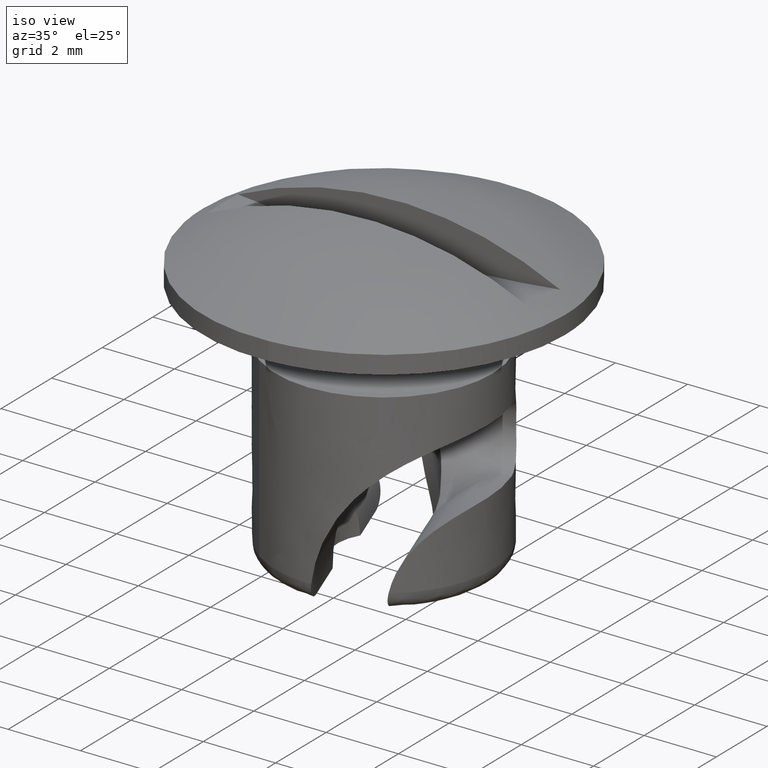
[diagram: clean part render]
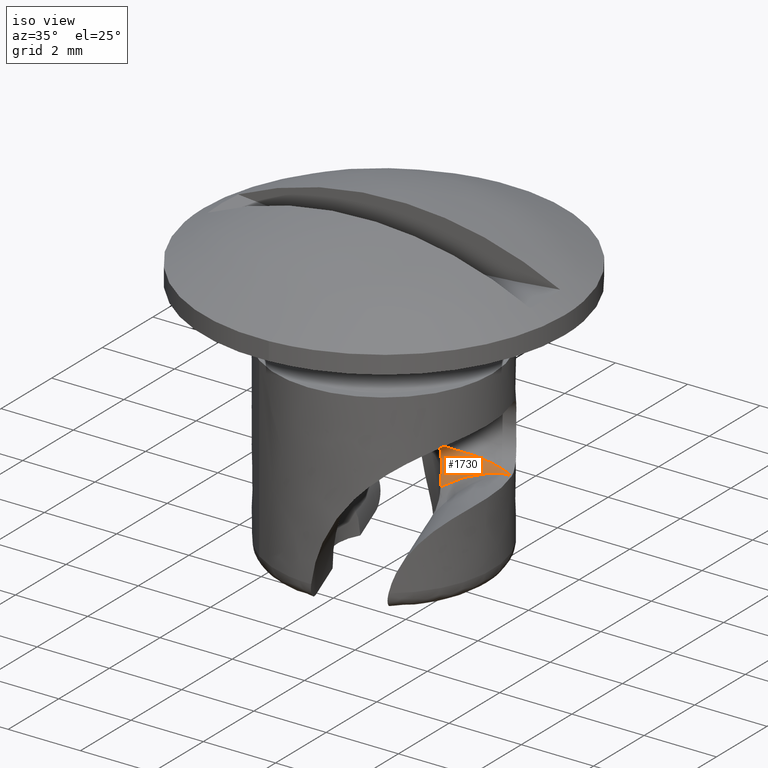
[diagram: same view with one face highlighted and labeled with its STEP entity id]
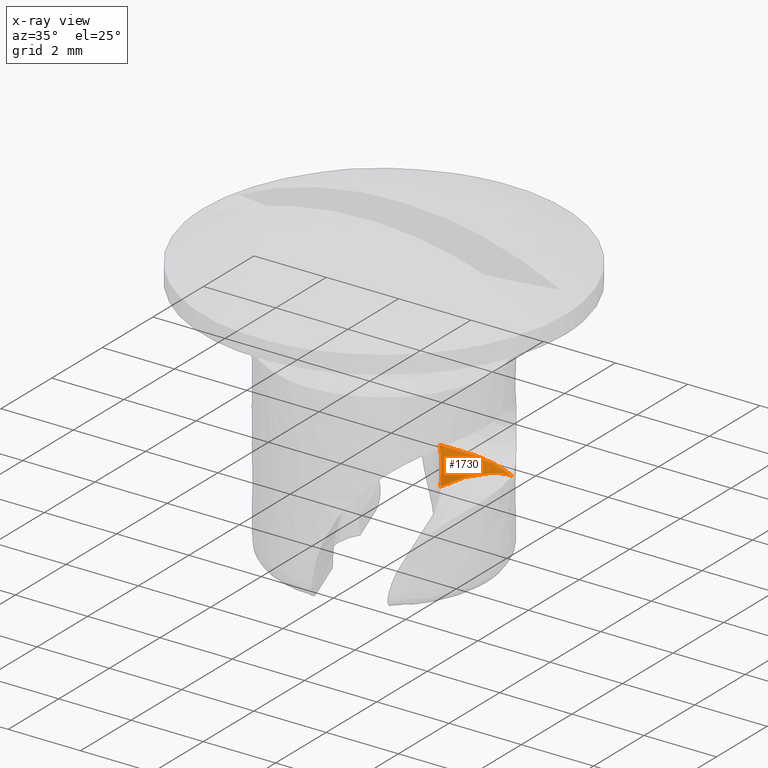
[diagram: x-ray of the same camera — body ghosted, the highlighted face saturated]
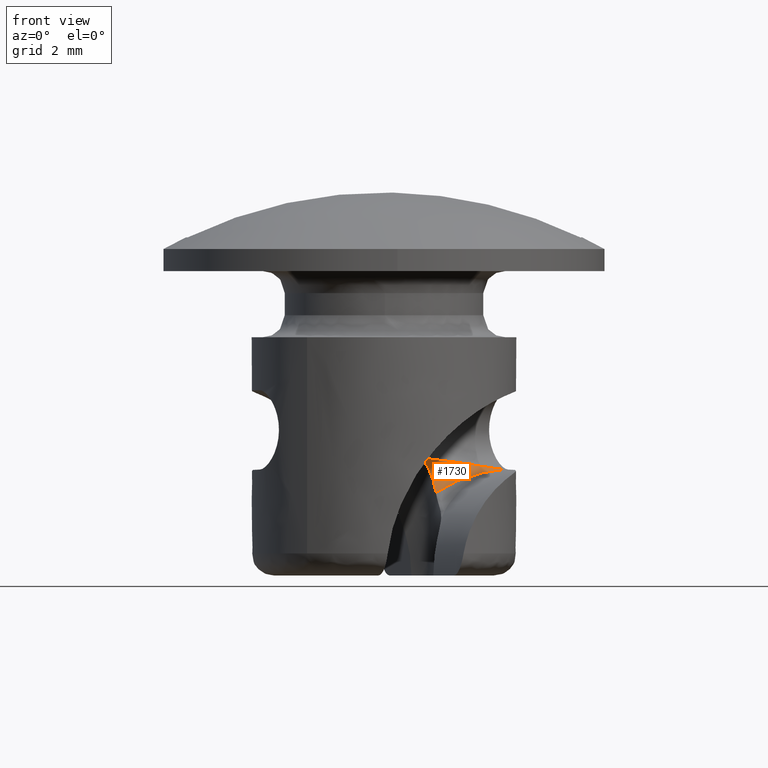
[diagram: same view with one face highlighted and labeled with its STEP entity id]
A machine part, iso view. The second image highlights one B-rep face of the part: STEP entity #1730.
The next image is the same camera in x-ray: the body ghosted, the highlighted face saturated — about 1% of this face is hidden behind the body in this view.
A second angle (front view) of the same face is appended — the face is thin or edge-on in the first view.
In plain terms, the highlighted face is a freeform B-spline surface patch.
Its self-contained STEP definition (entity closure, byte-faithful):
#1541=CARTESIAN_POINT('',(2.819077636768695,1.026061049781646,-4.500000000000000));
#1542=VERTEX_POINT('',#1541);
#1563=CARTESIAN_POINT('',(1.176015239365970,0.553224749701621,-5.024242325245750));
#1564=VERTEX_POINT('',#1563);
#1565=CARTESIAN_POINT('',(1.176015239365970,0.553224749701621,-5.024242325245750));
#1566=CARTESIAN_POINT('',(1.233647654575812,0.582225018347759,-4.985474702240012));
#1567=CARTESIAN_POINT('',(1.352210244149007,0.641884967292903,-4.905721151075755));
#1568=CARTESIAN_POINT('',(1.547078713043419,0.734112004436645,-4.802008236165012));
#1569=CARTESIAN_POINT('',(1.761792199094444,0.828534518010187,-4.707710509135886));
#1570=CARTESIAN_POINT('',(1.982710590404632,0.915078146502158,-4.633144461838898));
#1571=CARTESIAN_POINT('',(2.199734421845677,0.987032611027473,-4.576296891688249));
#1572=CARTESIAN_POINT('',(2.404187797268723,1.037800801841704,-4.536816749885258));
#1573=CARTESIAN_POINT('',(2.613107295540960,1.065475252937584,-4.513834308106317));
#1574=CARTESIAN_POINT('',(2.749646591098766,1.039347279842983,-4.504663440727514));
#1575=CARTESIAN_POINT('',(2.819077636768695,1.026061049781646,-4.500000000000000));
#1576=B_SPLINE_CURVE_WITH_KNOTS('',3,(#1565,#1566,#1567,#1568,#1569,#1570,#1571,#1572,#1573,#1574,#1575),.UNSPECIFIED.,.F.,.U.,(4,1,1,1,1,1,1,1,4),(0.0,0.122817746184123,0.252663192755562,0.389990015446671,0.535118409748377,0.658171618915249,0.773960359047332,0.885057495206172,1.000000000000000),.UNSPECIFIED.);
#1577=EDGE_CURVE('',#1564,#1542,#1576,.T.);
#1600=CARTESIAN_POINT('',(2.821736207328069,1.021228439045272,-4.503272534327961));
#1601=CARTESIAN_POINT('',(2.821519316243108,1.021960362181837,-4.501912983789081));
#1602=CARTESIAN_POINT('',(2.821001527751147,1.024280771620680,-4.499984011911098));
#1603=CARTESIAN_POINT('',(2.820406512321905,1.027180960036049,-4.499474012034329));
#1604=CARTESIAN_POINT('',(2.819588608661420,1.029572501931574,-4.497946363375283));
#1605=CARTESIAN_POINT('',(2.819236537250108,1.030803404078791,-4.497098041557043));
#1606=CARTESIAN_POINT('',(2.819235167452993,1.030808218132970,-4.497096120627790));
#1607=CARTESIAN_POINT('',(2.821070508992221,1.021164533892654,-4.503538132304211));
#1608=CARTESIAN_POINT('',(2.820835947899266,1.021943290875088,-4.502115474147386));
#1609=CARTESIAN_POINT('',(2.820275700158740,1.024373220055773,-4.500070083423023));
#1610=CARTESIAN_POINT('',(2.819642580722739,1.027413499376712,-4.499498775810242));
#1611=CARTESIAN_POINT('',(2.818787828361279,1.029947548012022,-4.497943029279989));
#1612=CARTESIAN_POINT('',(2.818418803579291,1.031249041003460,-4.497096364433590));
#1613=CARTESIAN_POINT('',(2.818417368748877,1.031254124648962,-4.497094450429064));
#1614=CARTESIAN_POINT('',(2.820405025493118,1.021100683890018,-4.503803686172327));
#1615=CARTESIAN_POINT('',(2.820152749949806,1.021926157736288,-4.502317713315100));
#1616=CARTESIAN_POINT('',(2.819550411383162,1.024466390849858,-4.500157540602181));
#1617=CARTESIAN_POINT('',(2.818878622919110,1.027645553259531,-4.499522647999249));
#1618=CARTESIAN_POINT('',(2.817987593370380,1.030322846335527,-4.497939460304985));
#1619=CARTESIAN_POINT('',(2.817601094593947,1.031694632049211,-4.497094770424051));
#1620=CARTESIAN_POINT('',(2.817599595064176,1.031699985406939,-4.497092865490909));
#1621=CARTESIAN_POINT('',(2.798269134433292,1.018976130279586,-4.512636486950698));
#1622=CARTESIAN_POINT('',(2.797438978783744,1.021364650428296,-4.509061378334963));
#1623=CARTESIAN_POINT('',(2.795395825605269,1.027507732243598,-4.502960388099381));
#1624=CARTESIAN_POINT('',(2.793435310166730,1.035403138517663,-4.500371335822512));
#1625=CARTESIAN_POINT('',(2.791230608903491,1.042833647568905,-4.497815992063145));
#1626=CARTESIAN_POINT('',(2.790252514492014,1.046599625264541,-4.497035370039018));
#1627=CARTESIAN_POINT('',(2.790248660099476,1.046614079967518,-4.497033624236365));
#1628=CARTESIAN_POINT('',(2.755968611511538,1.014171645310562,-4.529483909915514));
#1629=CARTESIAN_POINT('',(2.754092313856013,1.019314373317708,-4.521846722734492));
#1630=CARTESIAN_POINT('',(2.749569948507937,1.032291395485781,-4.508871340439330));
#1631=CARTESIAN_POINT('',(2.744936733062819,1.048190284602794,-4.501156118568392));
#1632=CARTESIAN_POINT('',(2.740307493389195,1.064597008853722,-4.496286039084551));
#1633=CARTESIAN_POINT('',(2.738019270857499,1.072786164422483,-4.495652856314121));
#1634=CARTESIAN_POINT('',(2.738010657081243,1.072817663845967,-4.495651231335462));
#1635=CARTESIAN_POINT('',(2.673423290672663,1.002197411498125,-4.562230420559798));
#1636=CARTESIAN_POINT('',(2.669797452152253,1.012048719555472,-4.546815491537537));
#1637=CARTESIAN_POINT('',(2.661104871988224,1.037532918489983,-4.521475670143876));
#1638=CARTESIAN_POINT('',(2.651434682110229,1.067613015967152,-4.503175993672000));
#1639=CARTESIAN_POINT('',(2.641493768702631,1.099145304203566,-4.491765795799748));
#1640=CARTESIAN_POINT('',(2.636579342565619,1.115525371313301,-4.489499084009325));
#1641=CARTESIAN_POINT('',(2.636560391724260,1.115588212619351,-4.489489918773478));
#1642=CARTESIAN_POINT('',(2.533410171860790,0.976023792364434,-4.616859078799386));
#1643=CARTESIAN_POINT('',(2.527460630111214,0.992702418921162,-4.588996299715907));
#1644=CARTESIAN_POINT('',(2.512345703666989,1.036126233629911,-4.542027217053232));
#1645=CARTESIAN_POINT('',(2.494747337763117,1.085067218670103,-4.503094000204092));
#1646=CARTESIAN_POINT('',(2.476012567248410,1.138297147817990,-4.475351970467049));
#1647=CARTESIAN_POINT('',(2.466234526340061,1.166839107057590,-4.467397998306542));
#1648=CARTESIAN_POINT('',(2.466196727336843,1.166949234251992,-4.467367003283956));
#1649=CARTESIAN_POINT('',(2.414447222315899,0.944658746414920,-4.659221757924579));
#1650=CARTESIAN_POINT('',(2.407102338018110,0.964779239061489,-4.621232412759293));
#1651=CARTESIAN_POINT('',(2.388263593574822,1.016719681029178,-4.553838706552672));
#1652=CARTESIAN_POINT('',(2.366291268541822,1.078610555287200,-4.498859966934186));
#1653=CARTESIAN_POINT('',(2.342273852238737,1.146593693637068,-4.457919276228129));
#1654=CARTESIAN_POINT('',(2.329609664923411,1.182705184861417,-4.443532791239259));
#1655=CARTESIAN_POINT('',(2.329560511842579,1.182845466177420,-4.443477124418235));
#1656=CARTESIAN_POINT('',(2.180227150158041,0.880046894022376,-4.739652060116825));
#1657=CARTESIAN_POINT('',(2.170645212477917,0.906405094664892,-4.683696291451455));
#1658=CARTESIAN_POINT('',(2.145591332469557,0.975377644328541,-4.582813103592482));
#1659=CARTESIAN_POINT('',(2.115585365456095,1.057768701630929,-4.496118917027775));
#1660=CARTESIAN_POINT('',(2.082036805132915,1.149936539298695,-4.425725790872275));
#1661=CARTESIAN_POINT('',(2.063769597825089,1.200153451526542,-4.398771240975081));
#1662=CARTESIAN_POINT('',(2.063698327580956,1.200349337482362,-4.398666068629546));
#1663=CARTESIAN_POINT('',(2.024692553392404,0.832048812609631,-4.789149711556409));
#1664=CARTESIAN_POINT('',(2.014166157600011,0.860982892357061,-4.722885832423031));
#1665=CARTESIAN_POINT('',(1.986559293226829,0.936860959177048,-4.601653644076823));
#1666=CARTESIAN_POINT('',(1.953375602404471,1.028123556404706,-4.495132575252044));
#1667=CARTESIAN_POINT('',(1.915953473182460,1.130990067598577,-4.405986048320969));
#1668=CARTESIAN_POINT('',(1.895432583175110,1.187397357311800,-4.370005244326697));
#1669=CARTESIAN_POINT('',(1.895352350976369,1.187617919677507,-4.369864586826899));
#1670=CARTESIAN_POINT('',(1.582400546311545,0.690096122238825,-4.922180516459346));
#1671=CARTESIAN_POINT('',(1.569711188770153,0.724957639445357,-4.829767028168275));
#1672=CARTESIAN_POINT('',(1.536354368533365,0.816804789269254,-4.656466311740024));
#1673=CARTESIAN_POINT('',(1.495847565264049,0.928442013546389,-4.498494769426033));
#1674=CARTESIAN_POINT('',(1.449439391070071,1.056502112988957,-4.359096220657168));
#1675=CARTESIAN_POINT('',(1.423551543780265,1.127998031241061,-4.298710267647336));
#1676=CARTESIAN_POINT('',(1.423449818022454,1.128278968563806,-4.298473037688122));
#1677=CARTESIAN_POINT('',(1.297277671908466,0.593819772061115,-4.999817803811919));
#1678=CARTESIAN_POINT('',(1.283860055047885,0.630586006112016,-4.893234982537911));
#1679=CARTESIAN_POINT('',(1.248531791169762,0.727615705645225,-4.691384762522179));
#1680=CARTESIAN_POINT('',(1.205541639843250,0.845964424760890,-4.504585526924242));
#1681=CARTESIAN_POINT('',(1.155924192390204,0.982751665844270,-4.336598640151399));
#1682=CARTESIAN_POINT('',(1.128043344696076,1.059676853753932,-4.262101932335263));
#1683=CARTESIAN_POINT('',(1.127933659587277,1.059979480376251,-4.261808685236147));
#1684=CARTESIAN_POINT('',(1.012581991233769,0.494840399495982,-5.071849606738534));
#1685=CARTESIAN_POINT('',(0.998581826197665,0.533273407931932,-4.952742701689714));
#1686=CARTESIAN_POINT('',(0.961600481322006,0.635025808502768,-4.725729230197819));
#1687=CARTESIAN_POINT('',(0.916405271094791,0.759520730995340,-4.513749707497120));
#1688=CARTESIAN_POINT('',(0.864136054824772,0.903574246925575,-4.320243902060973));
#1689=CARTESIAN_POINT('',(0.834677828595787,0.984804608878263,-4.232815625404608));
#1690=CARTESIAN_POINT('',(0.834561738228002,0.985124731237347,-4.232471131894848));
#1698=(BOUNDED_SURFACE()B_SPLINE_SURFACE(2,3,((#1600,#1607,#1614,#1621,#1628,#1635,#1642,#1649,#1656,#1663,#1670,#1677,#1684),(#1601,#1608,#1615,#1622,#1629,#1636,#1643,#1650,#1657,#1664,#1671,#1678,#1685),(#1602,#1609,#1616,#1623,#1630,#1637,#1644,#1651,#1658,#1665,#1672,#1679,#1686),(#1603,#1610,#1617,#1624,#1631,#1638,#1645,#1652,#1659,#1666,#1673,#1680,#1687),(#1604,#1611,#1618,#1625,#1632,#1639,#1646,#1653,#1660,#1667,#1674,#1681,#1688),(#1605,#1612,#1619,#1626,#1633,#1640,#1647,#1654,#1661,#1668,#1675,#1682,#1689),(#1606,#1613,#1620,#1627,#1634,#1641,#1648,#1655,#1662,#1669,#1676,#1683,#1690)),.UNSPECIFIED.,.F.,.F.,.U.)B_SPLINE_SURFACE_WITH_KNOTS((3,1,1,1,1,3),(4,2,1,1,1,2,2,4),(0.423891482977695,0.567918612233272,0.711945741488848,0.855972870744424,1.0,1.000576108517022),(0.0,0.002794399077532,0.093455040566633,0.184115682055734,0.365436965033936,0.728079530990340,1.453364662908433,2.797193476609722),.UNSPECIFIED.)GEOMETRIC_REPRESENTATION_ITEM()RATIONAL_B_SPLINE_SURFACE(((0.856541353287924,0.856676422945573,0.856811492603221,0.861328721526014,0.869467612290098,0.883502748888549,0.902857343599942,0.912852486849721,0.930267681444936,0.937324444976098,0.953516338452962,0.958780675186576,0.963246866374382),(0.850101954707311,0.850243087208724,0.850384219710138,0.855104212552571,0.863608432021723,0.878273560891550,0.898496921289567,0.908940714465515,0.927137621295773,0.934511140310886,0.951429835958703,0.956930471885620,0.961597136072820),(0.861594886965707,0.861725198603679,0.861855510241652,0.866213613388377,0.874065800217086,0.887606529283483,0.906279331029199,0.915922381225094,0.932724100965993,0.939532280023662,0.955153791157825,0.960232684186341,0.964541547474461),(0.897459548643726,0.897556092867286,0.897652637090846,0.900881433006874,0.906698897144561,0.916730842061346,0.930564995129214,0.937709259512663,0.950157180604759,0.955201168779638,0.966774706544584,0.970537515389697,0.973729830880866),(0.957695939741368,0.957735769999545,0.957775600257722,0.959107671408061,0.961507722804149,0.965646499225139,0.971353913589610,0.974301349328224,0.979436860212071,0.981517806578813,0.986292582118982,0.987844965495688,0.989161986292034),(1.000169216241035,1.000169056920002,1.000168897598969,1.000163569314368,1.000153969108784,1.000137414003100,1.000114584345642,1.000102794602687,1.000082252559152,1.000073928773685,1.000054829671524,1.000048620138017,1.000043352054832),(1.000338432482069,1.000338113840004,1.000337795197938,1.000327138628736,1.000307938217567,1.000274828006199,1.000229168691283,1.000205589205375,1.000164505118304,1.000147857547370,1.000109659343048,1.000097240276034,1.000086704109664)))REPRESENTATION_ITEM('')SURFACE());
#1699=CARTESIAN_POINT('',(0.845712621141468,0.987304493275519,-4.234273403431351));
#1700=VERTEX_POINT('',#1699);
#1701=CARTESIAN_POINT('',(1.176015239365970,0.553224749701621,-5.024242325245750));
#1702=CARTESIAN_POINT('',(1.170164170728802,0.565713689400622,-4.986119725295387));
#1703=CARTESIAN_POINT('',(1.156072377692670,0.594683666160350,-4.905581001906334));
#1704=CARTESIAN_POINT('',(1.128594471410467,0.645853124598103,-4.785884832154585));
#1705=CARTESIAN_POINT('',(1.092325283565762,0.705881209360352,-4.665714952111372));
#1706=CARTESIAN_POINT('',(1.047320094048110,0.771572939558827,-4.550222145330580));
#1707=CARTESIAN_POINT('',(0.992063586294932,0.841613080190192,-4.439576715485635));
#1708=CARTESIAN_POINT('',(0.926247020670068,0.914724968643971,-4.333157564266065));
#1709=CARTESIAN_POINT('',(0.872762655410516,0.962926356230896,-4.267486787462297));
#1710=CARTESIAN_POINT('',(0.845712621141468,0.987304493275519,-4.234273403431351));
#1711=B_SPLINE_CURVE_WITH_KNOTS('',3,(#1701,#1702,#1703,#1704,#1705,#1706,#1707,#1708,#1709,#1710),.UNSPECIFIED.,.F.,.U.,(4,1,1,1,1,1,1,4),(0.313649981401475,0.399450516679358,0.497112738831826,0.595014031668895,0.693716575850052,0.793768860200304,0.895697380498866,1.0),.UNSPECIFIED.);
#1712=EDGE_CURVE('',#1564,#1700,#1711,.T.);
#1713=ORIENTED_EDGE('',*,*,#1712,.F.);
#1714=ORIENTED_EDGE('',*,*,#1577,.T.);
#1715=CARTESIAN_POINT('',(0.845712621141468,0.987304493275519,-4.234273403431351));
#1716=CARTESIAN_POINT('',(0.977034305806228,1.019742838180287,-4.248342385765178));
#1717=CARTESIAN_POINT('',(1.221588542686740,1.080151002251234,-4.274542508981515));
#1718=CARTESIAN_POINT('',(1.569740274643567,1.147118667711286,-4.320588524003972));
#1719=CARTESIAN_POINT('',(1.878754289843595,1.185611639679857,-4.368322902290685));
#1720=CARTESIAN_POINT('',(2.156624753128541,1.194472563367219,-4.416084361140531));
#1721=CARTESIAN_POINT('',(2.405285216541678,1.171687988802683,-4.458170439689719));
#1722=CARTESIAN_POINT('',(2.627313002956700,1.120572824222597,-4.491775874476535));
#1723=CARTESIAN_POINT('',(2.757158247932409,1.056578206125261,-4.497344490399491));
#1724=CARTESIAN_POINT('',(2.819077636768695,1.026061049781646,-4.500000000000000));
#1725=B_SPLINE_CURVE_WITH_KNOTS('',3,(#1715,#1716,#1717,#1718,#1719,#1720,#1721,#1722,#1723,#1724),.UNSPECIFIED.,.F.,.U.,(4,1,1,1,1,1,1,4),(0.000006907679610,0.200270001181113,0.372947445700505,0.526132694251236,0.663839987856543,0.787391185823568,0.898613092551251,1.0),.UNSPECIFIED.);
#1726=EDGE_CURVE('',#1700,#1542,#1725,.T.);
#1727=ORIENTED_EDGE('',*,*,#1726,.F.);
#1728=EDGE_LOOP('',(#1713,#1714,#1727));
#1729=FACE_OUTER_BOUND('',#1728,.T.);
#1730=ADVANCED_FACE('',(#1729),#1698,.T.);